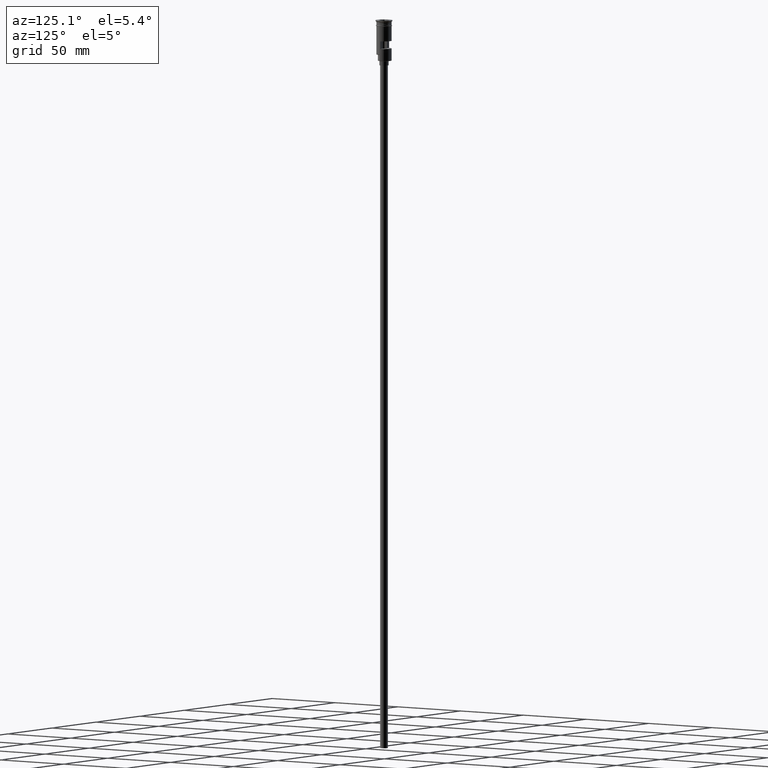
[diagram: clean part render]
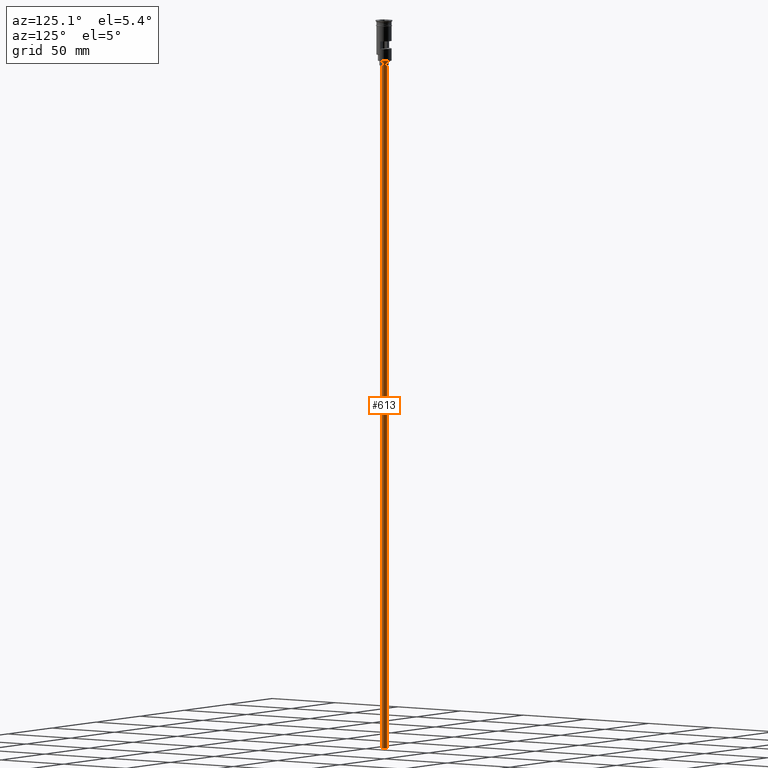
[diagram: same view with one face highlighted and labeled with its STEP entity id]
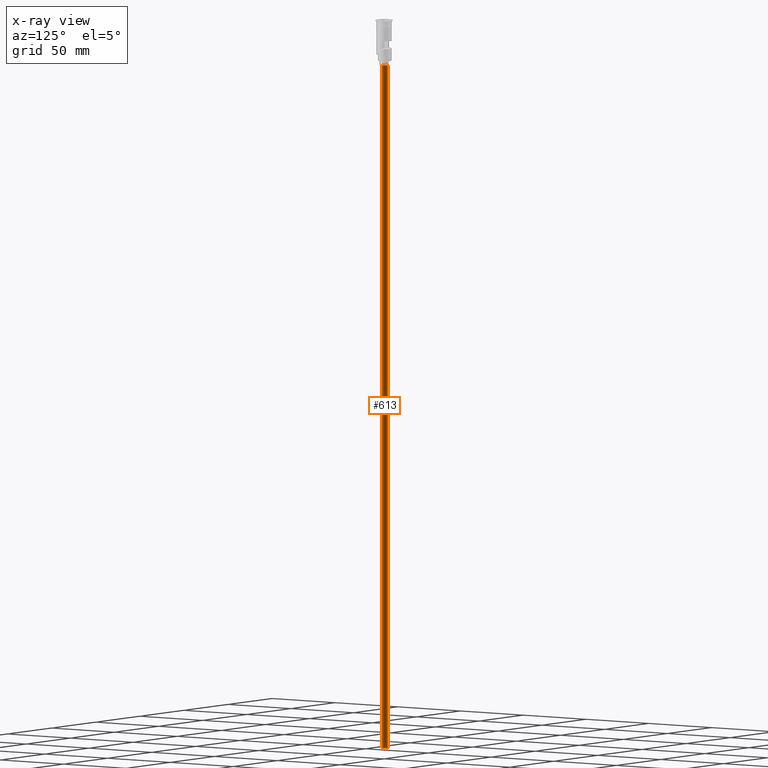
[diagram: x-ray of the same camera — body ghosted, the highlighted face saturated]
A machine part, auxiliary view. The second image highlights one B-rep face of the part: STEP entity #613.
The next image is the same camera in x-ray: the body ghosted, the highlighted face saturated — about 0% of this face is hidden behind the body in this view.
In plain terms, the highlighted cylindrical surface (edge-blend (fillet) strip) has radius 2.5 mm, axis along (-0, -0, 1).
Its self-contained STEP definition (entity closure, byte-faithful):
#39 = VECTOR ( 'NONE', #54, 1000.000000000000000 ) ;
#54 = DIRECTION ( 'NONE',  ( -0.000000000000000000, -0.000000000000000000, 1.000000000000000000 ) ) ;
#134 = VERTEX_POINT ( 'NONE', #1223 ) ;
#197 = EDGE_CURVE ( 'NONE', #134, #451, #570, .T. ) ;
#277 = VECTOR ( 'NONE', #965, 1000.000000000000000 ) ;
#295 = FACE_OUTER_BOUND ( 'NONE', #914, .T. ) ;
#306 = AXIS2_PLACEMENT_3D ( 'NONE', #469, #1575, #740 ) ;
#342 = ORIENTED_EDGE ( 'NONE', *, *, #1108, .T. ) ;
#395 = ORIENTED_EDGE ( 'NONE', *, *, #1200, .F. ) ;
#447 = EDGE_CURVE ( 'NONE', #448, #941, #1285, .T. ) ;
#448 = VERTEX_POINT ( 'NONE', #1291 ) ;
#451 = VERTEX_POINT ( 'NONE', #568 ) ;
#469 = CARTESIAN_POINT ( 'NONE',  ( 0.000000000000000000, 0.000000000000000000, -476.5000000000000568 ) ) ;
#476 = CARTESIAN_POINT ( 'NONE',  ( 2.500000000000000000, 0.000000000000000000, -476.5000000000000568 ) ) ;
#489 = CARTESIAN_POINT ( 'NONE',  ( 0.000000000000000000, 0.000000000000000000, -29.50000000000000000 ) ) ;
#568 = CARTESIAN_POINT ( 'NONE',  ( 2.500000000000000000, 0.000000000000000000, -29.50000000000000000 ) ) ;
#570 = LINE ( 'NONE', #476, #277 ) ;
#613 = ADVANCED_FACE ( 'NONE', ( #295 ), #858, .T. ) ;
#703 = ORIENTED_EDGE ( 'NONE', *, *, #197, .F. ) ;
#740 = DIRECTION ( 'NONE',  ( 1.000000000000000000, 0.000000000000000000, 0.000000000000000000 ) ) ;
#785 = AXIS2_PLACEMENT_3D ( 'NONE', #1030, #1525, #924 ) ;
#796 = CARTESIAN_POINT ( 'NONE',  ( -2.500000000000000000, 3.061616997868383141E-16, -29.50000000000000000 ) ) ;
#819 = DIRECTION ( 'NONE',  ( -1.000000000000000000, 0.000000000000000000, 0.000000000000000000 ) ) ;
#858 = CYLINDRICAL_SURFACE ( 'NONE', #306, 2.500000000000000000 ) ;
#914 = EDGE_LOOP ( 'NONE', ( #395, #983, #342, #703 ) ) ;
#924 = DIRECTION ( 'NONE',  ( -1.000000000000000000, 0.000000000000000000, 0.000000000000000000 ) ) ;
#941 = VERTEX_POINT ( 'NONE', #796 ) ;
#965 = DIRECTION ( 'NONE',  ( -0.000000000000000000, -0.000000000000000000, 1.000000000000000000 ) ) ;
#983 = ORIENTED_EDGE ( 'NONE', *, *, #447, .T. ) ;
#1030 = CARTESIAN_POINT ( 'NONE',  ( 0.000000000000000000, 0.000000000000000000, -476.5000000000000568 ) ) ;
#1048 = CARTESIAN_POINT ( 'NONE',  ( -2.500000000000000000, 3.061616997868383141E-16, -476.5000000000000568 ) ) ;
#1108 = EDGE_CURVE ( 'NONE', #941, #451, #1594, .T. ) ;
#1200 = EDGE_CURVE ( 'NONE', #448, #134, #1207, .T. ) ;
#1207 = CIRCLE ( 'NONE', #785, 2.500000000000000000 ) ;
#1223 = CARTESIAN_POINT ( 'NONE',  ( 2.500000000000000000, 0.000000000000000000, -476.5000000000000568 ) ) ;
#1279 = AXIS2_PLACEMENT_3D ( 'NONE', #489, #1451, #819 ) ;
#1285 = LINE ( 'NONE', #1048, #39 ) ;
#1291 = CARTESIAN_POINT ( 'NONE',  ( -2.500000000000000000, 3.061616997868383141E-16, -476.5000000000000568 ) ) ;
#1451 = DIRECTION ( 'NONE',  ( 0.000000000000000000, 0.000000000000000000, -1.000000000000000000 ) ) ;
#1525 = DIRECTION ( 'NONE',  ( 0.000000000000000000, 0.000000000000000000, -1.000000000000000000 ) ) ;
#1575 = DIRECTION ( 'NONE',  ( -0.000000000000000000, -0.000000000000000000, 1.000000000000000000 ) ) ;
#1594 = CIRCLE ( 'NONE', #1279, 2.500000000000000000 ) ;